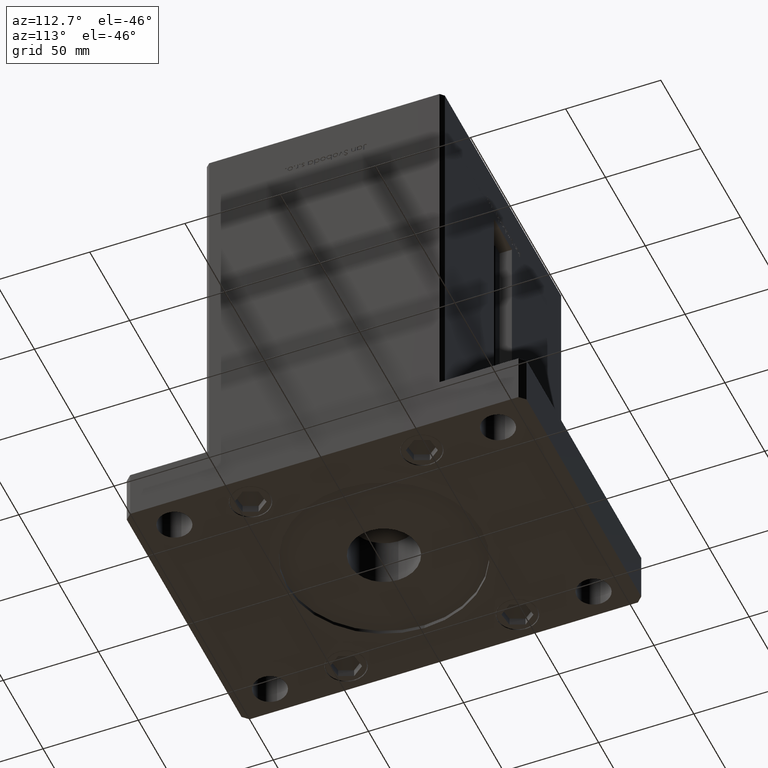
[diagram: clean part render]
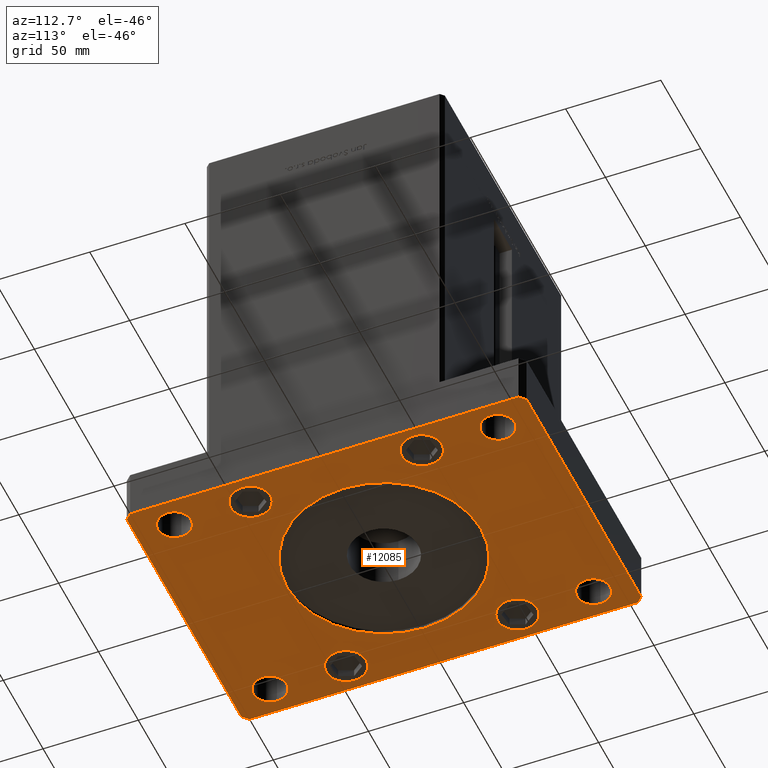
[diagram: same view with one face highlighted and labeled with its STEP entity id]
A machine part, auxiliary view. The second image highlights one B-rep face of the part: STEP entity #12085.
In plain terms, the highlighted planar face has unit normal (0, 0, 1).
Its self-contained STEP definition (entity closure, byte-faithful):
#61 = EDGE_CURVE ( 'NONE', #16550, #20628, #37269, .T. ) ;
#171 = DIRECTION ( 'NONE',  ( 1.000000000000000000, 0.000000000000000000, 0.000000000000000000 ) ) ;
#260 = VERTEX_POINT ( 'NONE', #30444 ) ;
#381 = CARTESIAN_POINT ( 'NONE',  ( 75.00000000000000000, -101.9999999999999005, 0.000000000000000000 ) ) ;
#565 = EDGE_CURVE ( 'NONE', #7591, #48232, #19745, .T. ) ;
#570 = VECTOR ( 'NONE', #51485, 1000.000000000000000 ) ;
#834 = FACE_BOUND ( 'NONE', #17529, .T. ) ;
#996 = LINE ( 'NONE', #8071, #43437 ) ;
#1169 = DIRECTION ( 'NONE',  ( 0.000000000000000000, 0.000000000000000000, -1.000000000000000000 ) ) ;
#1213 = VECTOR ( 'NONE', #3388, 1000.000000000000114 ) ;
#1464 = LINE ( 'NONE', #51071, #41805 ) ;
#1487 = CARTESIAN_POINT ( 'NONE',  ( -60.00000000000000000, -45.00000000000000000, 0.000000000000000000 ) ) ;
#2141 = CARTESIAN_POINT ( 'NONE',  ( 72.00000000000004263, 105.0000000000000284, 0.000000000000000000 ) ) ;
#2172 = VECTOR ( 'NONE', #32686, 1000.000000000000000 ) ;
#2306 = CIRCLE ( 'NONE', #4055, 10.50000000000000178 ) ;
#2449 = CARTESIAN_POINT ( 'NONE',  ( -70.50000000000000000, 45.00000000000001421, 0.000000000000000000 ) ) ;
#2538 = ORIENTED_EDGE ( 'NONE', *, *, #10041, .F. ) ;
#3052 = VERTEX_POINT ( 'NONE', #25466 ) ;
#3078 = ORIENTED_EDGE ( 'NONE', *, *, #28238, .T. ) ;
#3285 = ORIENTED_EDGE ( 'NONE', *, *, #21413, .T. ) ;
#3289 = AXIS2_PLACEMENT_3D ( 'NONE', #33895, #14071, #5147 ) ;
#3388 = DIRECTION ( 'NONE',  ( -0.7071067811865459074, -0.7071067811865491270, 0.000000000000000000 ) ) ;
#4036 = CARTESIAN_POINT ( 'NONE',  ( -51.25000000000000000, 84.99999999999997158, 0.000000000000000000 ) ) ;
#4055 = AXIS2_PLACEMENT_3D ( 'NONE', #37542, #5438, #50714 ) ;
#5147 = DIRECTION ( 'NONE',  ( 1.000000000000000000, 0.000000000000000000, 0.000000000000000000 ) ) ;
#5176 = DIRECTION ( 'NONE',  ( 1.000000000000000000, 0.000000000000000000, -0.000000000000000000 ) ) ;
#5409 = CARTESIAN_POINT ( 'NONE',  ( 75.00000000000001421, 102.0000000000000142, 0.000000000000000000 ) ) ;
#5438 = DIRECTION ( 'NONE',  ( 0.000000000000000000, 0.000000000000000000, 1.000000000000000000 ) ) ;
#5598 = AXIS2_PLACEMENT_3D ( 'NONE', #19258, #27674, #32544 ) ;
#5821 = DIRECTION ( 'NONE',  ( 0.000000000000000000, 0.000000000000000000, 1.000000000000000000 ) ) ;
#5949 = VERTEX_POINT ( 'NONE', #4036 ) ;
#6069 = DIRECTION ( 'NONE',  ( -1.000000000000000000, 0.000000000000000000, 0.000000000000000000 ) ) ;
#6380 = CIRCLE ( 'NONE', #43624, 51.00000000000000000 ) ;
#6451 = EDGE_LOOP ( 'NONE', ( #32646, #41854 ) ) ;
#6984 = CARTESIAN_POINT ( 'NONE',  ( -60.00000000000000000, 45.00000000000001421, 0.000000000000000000 ) ) ;
#7005 = DIRECTION ( 'NONE',  ( 0.7071067811865459074, 0.7071067811865491270, 0.000000000000000000 ) ) ;
#7090 = VERTEX_POINT ( 'NONE', #31830 ) ;
#7473 = DIRECTION ( 'NONE',  ( 0.000000000000000000, 0.000000000000000000, 1.000000000000000000 ) ) ;
#7506 = CARTESIAN_POINT ( 'NONE',  ( 51.24999999999995737, -85.00000000000001421, 0.000000000000000000 ) ) ;
#7591 = VERTEX_POINT ( 'NONE', #34159 ) ;
#7735 = CARTESIAN_POINT ( 'NONE',  ( -68.74999999999997158, -85.00000000000001421, 0.000000000000000000 ) ) ;
#8071 = CARTESIAN_POINT ( 'NONE',  ( -74.99999999999998579, -102.0000000000000142, 0.000000000000000000 ) ) ;
#8152 = CARTESIAN_POINT ( 'NONE',  ( 49.50000000000000000, -45.00000000000000711, 0.000000000000000000 ) ) ;
#8348 = VERTEX_POINT ( 'NONE', #8152 ) ;
#8437 = ORIENTED_EDGE ( 'NONE', *, *, #27630, .F. ) ;
#8510 = EDGE_CURVE ( 'NONE', #19295, #260, #42542, .T. ) ;
#8700 = DIRECTION ( 'NONE',  ( 1.000000000000000000, 0.000000000000000000, 0.000000000000000000 ) ) ;
#8784 = CARTESIAN_POINT ( 'NONE',  ( 0.000000000000000000, 0.000000000000000000, 0.000000000000000000 ) ) ;
#8921 = DIRECTION ( 'NONE',  ( 1.000000000000000000, 0.000000000000000000, 0.000000000000000000 ) ) ;
#8979 = FACE_BOUND ( 'NONE', #51554, .T. ) ;
#9492 = CARTESIAN_POINT ( 'NONE',  ( -59.99999999999997158, -85.00000000000001421, 0.000000000000000000 ) ) ;
#10041 = EDGE_CURVE ( 'NONE', #41436, #23088, #996, .T. ) ;
#10143 = ORIENTED_EDGE ( 'NONE', *, *, #45270, .F. ) ;
#10362 = ORIENTED_EDGE ( 'NONE', *, *, #22836, .T. ) ;
#10675 = DIRECTION ( 'NONE',  ( 0.000000000000000000, 0.000000000000000000, -1.000000000000000000 ) ) ;
#11148 = EDGE_LOOP ( 'NONE', ( #3285, #19863 ) ) ;
#11452 = AXIS2_PLACEMENT_3D ( 'NONE', #25806, #42340, #5176 ) ;
#11586 = CIRCLE ( 'NONE', #47116, 10.50000000000000178 ) ;
#11801 = LINE ( 'NONE', #381, #2172 ) ;
#12085 = ADVANCED_FACE ( 'NONE', ( #29601, #12522, #25537, #46137, #834, #8979, #17391, #33925, #29066, #13311 ), #46409, .F. ) ;
#12191 = LINE ( 'NONE', #37411, #18459 ) ;
#12218 = EDGE_LOOP ( 'NONE', ( #44792, #32598 ) ) ;
#12473 = LINE ( 'NONE', #45572, #22051 ) ;
#12496 = DIRECTION ( 'NONE',  ( 0.000000000000000000, 0.000000000000000000, 1.000000000000000000 ) ) ;
#12522 = FACE_OUTER_BOUND ( 'NONE', #15930, .T. ) ;
#12581 = EDGE_CURVE ( 'NONE', #13951, #24172, #53032, .T. ) ;
#12595 = ORIENTED_EDGE ( 'NONE', *, *, #45615, .T. ) ;
#12905 = ORIENTED_EDGE ( 'NONE', *, *, #37012, .F. ) ;
#13198 = ORIENTED_EDGE ( 'NONE', *, *, #8510, .T. ) ;
#13311 = FACE_BOUND ( 'NONE', #6451, .T. ) ;
#13525 = CARTESIAN_POINT ( 'NONE',  ( -59.99999999999997158, -85.00000000000001421, 0.000000000000000000 ) ) ;
#13779 = EDGE_CURVE ( 'NONE', #23088, #7591, #1464, .T. ) ;
#13824 = CARTESIAN_POINT ( 'NONE',  ( 59.99999999999997158, -85.00000000000001421, 0.000000000000000000 ) ) ;
#13951 = VERTEX_POINT ( 'NONE', #7506 ) ;
#14071 = DIRECTION ( 'NONE',  ( 0.000000000000000000, 0.000000000000000000, 1.000000000000000000 ) ) ;
#14168 = AXIS2_PLACEMENT_3D ( 'NONE', #6984, #40070, #34659 ) ;
#14240 = LINE ( 'NONE', #30803, #1213 ) ;
#14442 = VERTEX_POINT ( 'NONE', #19311 ) ;
#15089 = CARTESIAN_POINT ( 'NONE',  ( 60.00000000000000000, 84.99999999999998579, 0.000000000000000000 ) ) ;
#15126 = CARTESIAN_POINT ( 'NONE',  ( 59.99999999999997158, -85.00000000000001421, 0.000000000000000000 ) ) ;
#15196 = AXIS2_PLACEMENT_3D ( 'NONE', #33141, #41290, #20409 ) ;
#15558 = CARTESIAN_POINT ( 'NONE',  ( 0.000000000000000000, 0.000000000000000000, 0.000000000000000000 ) ) ;
#15611 = DIRECTION ( 'NONE',  ( 1.000000000000000000, 0.000000000000000000, 0.000000000000000000 ) ) ;
#15624 = EDGE_CURVE ( 'NONE', #47282, #20967, #12191, .T. ) ;
#15930 = EDGE_LOOP ( 'NONE', ( #23351, #2538, #20697, #12905, #8437, #33090, #10143, #44480 ) ) ;
#15948 = DIRECTION ( 'NONE',  ( 0.000000000000000000, 0.000000000000000000, 1.000000000000000000 ) ) ;
#16068 = CIRCLE ( 'NONE', #36022, 8.750000000000007105 ) ;
#16550 = VERTEX_POINT ( 'NONE', #21540 ) ;
#16597 = EDGE_CURVE ( 'NONE', #7090, #3052, #6380, .T. ) ;
#17391 = FACE_BOUND ( 'NONE', #51562, .T. ) ;
#17529 = EDGE_LOOP ( 'NONE', ( #35218, #25609 ) ) ;
#17691 = VERTEX_POINT ( 'NONE', #18737 ) ;
#17911 = AXIS2_PLACEMENT_3D ( 'NONE', #24340, #20536, #171 ) ;
#17974 = ORIENTED_EDGE ( 'NONE', *, *, #31255, .T. ) ;
#18459 = VECTOR ( 'NONE', #33597, 1000.000000000000000 ) ;
#18737 = CARTESIAN_POINT ( 'NONE',  ( 49.50000000000000000, 45.00000000000000711, 0.000000000000000000 ) ) ;
#18898 = CARTESIAN_POINT ( 'NONE',  ( -49.49999999999999289, 45.00000000000001421, 0.000000000000000000 ) ) ;
#18963 = LINE ( 'NONE', #2141, #570 ) ;
#19258 = CARTESIAN_POINT ( 'NONE',  ( 60.00000000000000000, -45.00000000000000711, 0.000000000000000000 ) ) ;
#19295 = VERTEX_POINT ( 'NONE', #7735 ) ;
#19311 = CARTESIAN_POINT ( 'NONE',  ( -68.75000000000000000, 84.99999999999997158, 0.000000000000000000 ) ) ;
#19728 = CARTESIAN_POINT ( 'NONE',  ( -71.99999999999998579, -105.0000000000000142, 0.000000000000000000 ) ) ;
#19745 = LINE ( 'NONE', #35496, #47619 ) ;
#19863 = ORIENTED_EDGE ( 'NONE', *, *, #20301, .T. ) ;
#20301 = EDGE_CURVE ( 'NONE', #26906, #26952, #31638, .T. ) ;
#20347 = CARTESIAN_POINT ( 'NONE',  ( -75.00000000000001421, 102.0000000000000000, 0.000000000000000000 ) ) ;
#20409 = DIRECTION ( 'NONE',  ( 1.000000000000000000, 0.000000000000000000, 0.000000000000000000 ) ) ;
#20536 = DIRECTION ( 'NONE',  ( 0.000000000000000000, 0.000000000000000000, 1.000000000000000000 ) ) ;
#20628 = VERTEX_POINT ( 'NONE', #28825 ) ;
#20697 = ORIENTED_EDGE ( 'NONE', *, *, #38521, .F. ) ;
#20967 = VERTEX_POINT ( 'NONE', #40971 ) ;
#21413 = EDGE_CURVE ( 'NONE', #26952, #26906, #16068, .T. ) ;
#21540 = CARTESIAN_POINT ( 'NONE',  ( -70.50000000000000000, -45.00000000000000000, 0.000000000000000000 ) ) ;
#22051 = VECTOR ( 'NONE', #26475, 1000.000000000000000 ) ;
#22112 = AXIS2_PLACEMENT_3D ( 'NONE', #53086, #15948, #40898 ) ;
#22296 = DIRECTION ( 'NONE',  ( 1.000000000000000000, 0.000000000000000000, 0.000000000000000000 ) ) ;
#22778 = CARTESIAN_POINT ( 'NONE',  ( 68.75000000000000000, 84.99999999999998579, 0.000000000000000000 ) ) ;
#22836 = EDGE_CURVE ( 'NONE', #45983, #8348, #28991, .T. ) ;
#23088 = VERTEX_POINT ( 'NONE', #19728 ) ;
#23351 = ORIENTED_EDGE ( 'NONE', *, *, #13779, .F. ) ;
#23378 = EDGE_LOOP ( 'NONE', ( #47485, #12595 ) ) ;
#23624 = AXIS2_PLACEMENT_3D ( 'NONE', #15126, #48207, #40878 ) ;
#24172 = VERTEX_POINT ( 'NONE', #45498 ) ;
#24340 = CARTESIAN_POINT ( 'NONE',  ( -60.00000000000000711, 84.99999999999997158, 0.000000000000000000 ) ) ;
#24690 = AXIS2_PLACEMENT_3D ( 'NONE', #13824, #30380, #8700 ) ;
#24772 = AXIS2_PLACEMENT_3D ( 'NONE', #45917, #34502, #22296 ) ;
#25309 = VERTEX_POINT ( 'NONE', #18898 ) ;
#25466 = CARTESIAN_POINT ( 'NONE',  ( -51.00000000000000000, 0.000000000000000000, 0.000000000000000000 ) ) ;
#25537 = FACE_BOUND ( 'NONE', #26313, .T. ) ;
#25609 = ORIENTED_EDGE ( 'NONE', *, *, #28731, .T. ) ;
#25806 = CARTESIAN_POINT ( 'NONE',  ( 0.000000000000000000, 0.000000000000000000, 0.000000000000000000 ) ) ;
#26313 = EDGE_LOOP ( 'NONE', ( #13198, #50487 ) ) ;
#26413 = DIRECTION ( 'NONE',  ( 1.000000000000000000, 7.709882115452476194E-16, 0.000000000000000000 ) ) ;
#26475 = DIRECTION ( 'NONE',  ( 1.360567432138672081E-16, -1.000000000000000000, 0.000000000000000000 ) ) ;
#26653 = CIRCLE ( 'NONE', #3289, 10.49999999999999467 ) ;
#26906 = VERTEX_POINT ( 'NONE', #22778 ) ;
#26952 = VERTEX_POINT ( 'NONE', #52054 ) ;
#27630 = EDGE_CURVE ( 'NONE', #20967, #50424, #18963, .T. ) ;
#27674 = DIRECTION ( 'NONE',  ( 0.000000000000000000, 0.000000000000000000, 1.000000000000000000 ) ) ;
#28165 = AXIS2_PLACEMENT_3D ( 'NONE', #40828, #7473, #15611 ) ;
#28238 = EDGE_CURVE ( 'NONE', #20628, #16550, #2306, .T. ) ;
#28731 = EDGE_CURVE ( 'NONE', #5949, #14442, #41311, .T. ) ;
#28825 = CARTESIAN_POINT ( 'NONE',  ( -49.49999999999999289, -45.00000000000000000, 0.000000000000000000 ) ) ;
#28991 = CIRCLE ( 'NONE', #5598, 10.49999999999999467 ) ;
#29018 = CIRCLE ( 'NONE', #28165, 8.750000000000007105 ) ;
#29066 = FACE_BOUND ( 'NONE', #53372, .T. ) ;
#29093 = AXIS2_PLACEMENT_3D ( 'NONE', #15558, #10675, #6069 ) ;
#29601 = FACE_BOUND ( 'NONE', #12218, .T. ) ;
#29812 = DIRECTION ( 'NONE',  ( 0.000000000000000000, 0.000000000000000000, 1.000000000000000000 ) ) ;
#29873 = CIRCLE ( 'NONE', #33314, 8.750000000000007105 ) ;
#30380 = DIRECTION ( 'NONE',  ( 0.000000000000000000, 0.000000000000000000, 1.000000000000000000 ) ) ;
#30444 = CARTESIAN_POINT ( 'NONE',  ( -51.24999999999996447, -85.00000000000001421, 0.000000000000000000 ) ) ;
#30803 = CARTESIAN_POINT ( 'NONE',  ( -72.00000000000002842, 105.0000000000000000, 0.000000000000000000 ) ) ;
#31255 = EDGE_CURVE ( 'NONE', #8348, #45983, #26653, .T. ) ;
#31638 = CIRCLE ( 'NONE', #22112, 8.750000000000007105 ) ;
#31830 = CARTESIAN_POINT ( 'NONE',  ( 51.00000000000000000, 6.245698675651500444E-15, 0.000000000000000000 ) ) ;
#32544 = DIRECTION ( 'NONE',  ( 1.000000000000000000, 0.000000000000000000, 0.000000000000000000 ) ) ;
#32598 = ORIENTED_EDGE ( 'NONE', *, *, #16597, .F. ) ;
#32646 = ORIENTED_EDGE ( 'NONE', *, *, #12581, .T. ) ;
#32686 = DIRECTION ( 'NONE',  ( 6.802837160693364103E-17, 1.000000000000000000, 0.000000000000000000 ) ) ;
#33090 = ORIENTED_EDGE ( 'NONE', *, *, #15624, .F. ) ;
#33141 = CARTESIAN_POINT ( 'NONE',  ( 60.00000000000000000, 45.00000000000000711, 0.000000000000000000 ) ) ;
#33314 = AXIS2_PLACEMENT_3D ( 'NONE', #13525, #29812, #8921 ) ;
#33597 = DIRECTION ( 'NONE',  ( -0.7071067811865426878, 0.7071067811865524577, 0.000000000000000000 ) ) ;
#33770 = AXIS2_PLACEMENT_3D ( 'NONE', #1487, #5821, #51360 ) ;
#33895 = CARTESIAN_POINT ( 'NONE',  ( 60.00000000000000000, -45.00000000000000711, 0.000000000000000000 ) ) ;
#33925 = FACE_BOUND ( 'NONE', #23378, .T. ) ;
#34146 = CARTESIAN_POINT ( 'NONE',  ( 70.50000000000000000, -45.00000000000000711, 0.000000000000000000 ) ) ;
#34159 = CARTESIAN_POINT ( 'NONE',  ( 72.00000000000001421, -104.9999999999999005, 0.000000000000000000 ) ) ;
#34172 = DIRECTION ( 'NONE',  ( 1.000000000000000000, 0.000000000000000000, 0.000000000000000000 ) ) ;
#34330 = ORIENTED_EDGE ( 'NONE', *, *, #61, .T. ) ;
#34502 = DIRECTION ( 'NONE',  ( 0.000000000000000000, 0.000000000000000000, 1.000000000000000000 ) ) ;
#34659 = DIRECTION ( 'NONE',  ( 1.000000000000000000, 0.000000000000000000, 0.000000000000000000 ) ) ;
#34764 = ORIENTED_EDGE ( 'NONE', *, *, #36601, .T. ) ;
#35218 = ORIENTED_EDGE ( 'NONE', *, *, #39633, .T. ) ;
#35496 = CARTESIAN_POINT ( 'NONE',  ( 72.00000000000001421, -104.9999999999999005, 0.000000000000000000 ) ) ;
#35712 = DIRECTION ( 'NONE',  ( 1.000000000000000000, 0.000000000000000000, 0.000000000000000000 ) ) ;
#36022 = AXIS2_PLACEMENT_3D ( 'NONE', #15089, #39775, #35712 ) ;
#36266 = CARTESIAN_POINT ( 'NONE',  ( 70.50000000000000000, 45.00000000000000711, 0.000000000000000000 ) ) ;
#36337 = CARTESIAN_POINT ( 'NONE',  ( 75.00000000000000000, -101.9999999999999005, 0.000000000000000000 ) ) ;
#36601 = EDGE_CURVE ( 'NONE', #45074, #25309, #37588, .T. ) ;
#37012 = EDGE_CURVE ( 'NONE', #50424, #45905, #14240, .T. ) ;
#37182 = DIRECTION ( 'NONE',  ( 1.000000000000000000, 0.000000000000000000, 0.000000000000000000 ) ) ;
#37269 = CIRCLE ( 'NONE', #33770, 10.50000000000000178 ) ;
#37411 = CARTESIAN_POINT ( 'NONE',  ( 75.00000000000001421, 102.0000000000000142, 0.000000000000000000 ) ) ;
#37542 = CARTESIAN_POINT ( 'NONE',  ( -60.00000000000000000, -45.00000000000000000, 0.000000000000000000 ) ) ;
#37588 = CIRCLE ( 'NONE', #14168, 10.50000000000000178 ) ;
#38521 = EDGE_CURVE ( 'NONE', #45905, #41436, #12473, .T. ) ;
#39162 = EDGE_CURVE ( 'NONE', #260, #19295, #29873, .T. ) ;
#39633 = EDGE_CURVE ( 'NONE', #14442, #5949, #29018, .T. ) ;
#39775 = DIRECTION ( 'NONE',  ( 0.000000000000000000, 0.000000000000000000, 1.000000000000000000 ) ) ;
#40070 = DIRECTION ( 'NONE',  ( 0.000000000000000000, 0.000000000000000000, 1.000000000000000000 ) ) ;
#40828 = CARTESIAN_POINT ( 'NONE',  ( -60.00000000000000711, 84.99999999999997158, 0.000000000000000000 ) ) ;
#40878 = DIRECTION ( 'NONE',  ( 1.000000000000000000, 0.000000000000000000, 0.000000000000000000 ) ) ;
#40898 = DIRECTION ( 'NONE',  ( 1.000000000000000000, 0.000000000000000000, 0.000000000000000000 ) ) ;
#40971 = CARTESIAN_POINT ( 'NONE',  ( 72.00000000000004263, 105.0000000000000284, 0.000000000000000000 ) ) ;
#41167 = DIRECTION ( 'NONE',  ( 0.7071067811865474617, -0.7071067811865474617, 0.000000000000000000 ) ) ;
#41247 = EDGE_CURVE ( 'NONE', #25309, #45074, #11586, .T. ) ;
#41290 = DIRECTION ( 'NONE',  ( 0.000000000000000000, 0.000000000000000000, 1.000000000000000000 ) ) ;
#41311 = CIRCLE ( 'NONE', #17911, 8.750000000000007105 ) ;
#41436 = VERTEX_POINT ( 'NONE', #51482 ) ;
#41805 = VECTOR ( 'NONE', #26413, 1000.000000000000000 ) ;
#41854 = ORIENTED_EDGE ( 'NONE', *, *, #43580, .T. ) ;
#42055 = CIRCLE ( 'NONE', #15196, 10.49999999999999467 ) ;
#42094 = CIRCLE ( 'NONE', #29093, 51.00000000000000000 ) ;
#42340 = DIRECTION ( 'NONE',  ( 0.000000000000000000, 0.000000000000000000, 1.000000000000000000 ) ) ;
#42542 = CIRCLE ( 'NONE', #45155, 8.750000000000007105 ) ;
#43004 = VERTEX_POINT ( 'NONE', #36266 ) ;
#43437 = VECTOR ( 'NONE', #41167, 1000.000000000000114 ) ;
#43580 = EDGE_CURVE ( 'NONE', #24172, #13951, #48055, .T. ) ;
#43624 = AXIS2_PLACEMENT_3D ( 'NONE', #8784, #1169, #50514 ) ;
#43884 = ORIENTED_EDGE ( 'NONE', *, *, #41247, .T. ) ;
#44480 = ORIENTED_EDGE ( 'NONE', *, *, #565, .F. ) ;
#44792 = ORIENTED_EDGE ( 'NONE', *, *, #46792, .F. ) ;
#45074 = VERTEX_POINT ( 'NONE', #2449 ) ;
#45155 = AXIS2_PLACEMENT_3D ( 'NONE', #9492, #12496, #34172 ) ;
#45236 = CARTESIAN_POINT ( 'NONE',  ( -72.00000000000002842, 105.0000000000000000, 0.000000000000000000 ) ) ;
#45270 = EDGE_CURVE ( 'NONE', #48232, #47282, #11801, .T. ) ;
#45498 = CARTESIAN_POINT ( 'NONE',  ( 68.74999999999997158, -85.00000000000001421, 0.000000000000000000 ) ) ;
#45572 = CARTESIAN_POINT ( 'NONE',  ( -75.00000000000001421, 102.0000000000000000, 0.000000000000000000 ) ) ;
#45588 = CARTESIAN_POINT ( 'NONE',  ( -60.00000000000000000, 45.00000000000001421, 0.000000000000000000 ) ) ;
#45615 = EDGE_CURVE ( 'NONE', #43004, #17691, #42055, .T. ) ;
#45850 = DIRECTION ( 'NONE',  ( 0.000000000000000000, 0.000000000000000000, 1.000000000000000000 ) ) ;
#45905 = VERTEX_POINT ( 'NONE', #20347 ) ;
#45917 = CARTESIAN_POINT ( 'NONE',  ( 60.00000000000000000, 45.00000000000000711, 0.000000000000000000 ) ) ;
#45983 = VERTEX_POINT ( 'NONE', #34146 ) ;
#46137 = FACE_BOUND ( 'NONE', #11148, .T. ) ;
#46409 = PLANE ( 'NONE',  #11452 ) ;
#46792 = EDGE_CURVE ( 'NONE', #3052, #7090, #42094, .T. ) ;
#46963 = EDGE_CURVE ( 'NONE', #17691, #43004, #48128, .T. ) ;
#47116 = AXIS2_PLACEMENT_3D ( 'NONE', #45588, #45850, #37182 ) ;
#47282 = VERTEX_POINT ( 'NONE', #5409 ) ;
#47485 = ORIENTED_EDGE ( 'NONE', *, *, #46963, .T. ) ;
#47619 = VECTOR ( 'NONE', #7005, 1000.000000000000114 ) ;
#48055 = CIRCLE ( 'NONE', #24690, 8.750000000000007105 ) ;
#48128 = CIRCLE ( 'NONE', #24772, 10.49999999999999467 ) ;
#48207 = DIRECTION ( 'NONE',  ( 0.000000000000000000, 0.000000000000000000, 1.000000000000000000 ) ) ;
#48232 = VERTEX_POINT ( 'NONE', #36337 ) ;
#50424 = VERTEX_POINT ( 'NONE', #45236 ) ;
#50487 = ORIENTED_EDGE ( 'NONE', *, *, #39162, .T. ) ;
#50514 = DIRECTION ( 'NONE',  ( -1.000000000000000000, 0.000000000000000000, 0.000000000000000000 ) ) ;
#50714 = DIRECTION ( 'NONE',  ( 1.000000000000000000, 0.000000000000000000, 0.000000000000000000 ) ) ;
#51071 = CARTESIAN_POINT ( 'NONE',  ( -71.99999999999998579, -105.0000000000000142, 0.000000000000000000 ) ) ;
#51360 = DIRECTION ( 'NONE',  ( 1.000000000000000000, 0.000000000000000000, 0.000000000000000000 ) ) ;
#51482 = CARTESIAN_POINT ( 'NONE',  ( -74.99999999999998579, -102.0000000000000142, 0.000000000000000000 ) ) ;
#51485 = DIRECTION ( 'NONE',  ( -1.000000000000000000, -1.927470528863118062E-16, 0.000000000000000000 ) ) ;
#51554 = EDGE_LOOP ( 'NONE', ( #34330, #3078 ) ) ;
#51562 = EDGE_LOOP ( 'NONE', ( #17974, #10362 ) ) ;
#52054 = CARTESIAN_POINT ( 'NONE',  ( 51.24999999999998579, 84.99999999999998579, 0.000000000000000000 ) ) ;
#53032 = CIRCLE ( 'NONE', #23624, 8.750000000000007105 ) ;
#53086 = CARTESIAN_POINT ( 'NONE',  ( 60.00000000000000000, 84.99999999999998579, 0.000000000000000000 ) ) ;
#53372 = EDGE_LOOP ( 'NONE', ( #34764, #43884 ) ) ;